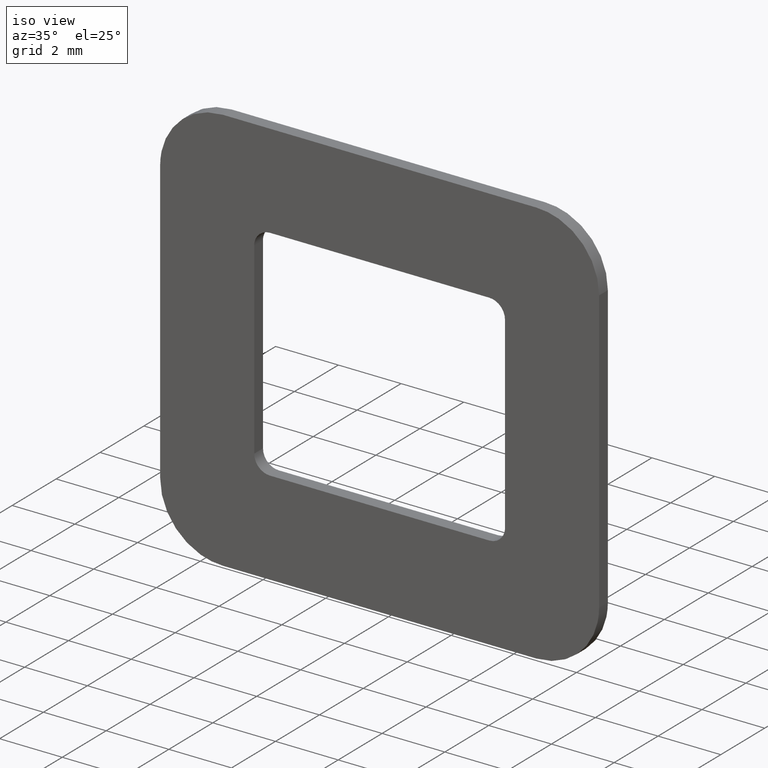
[diagram: clean part render]
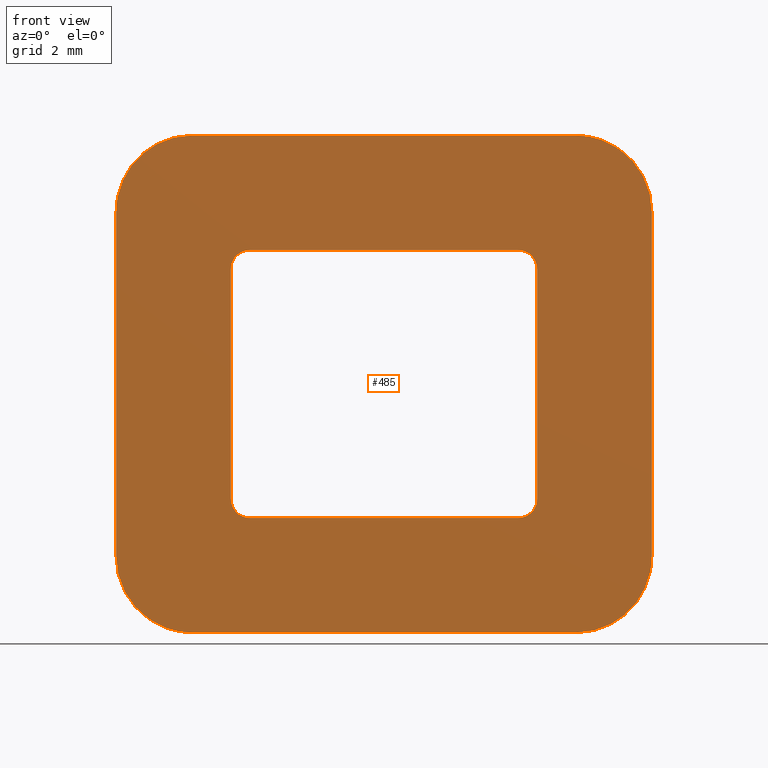
[diagram: tour spotlight — one face highlighted and labeled with its STEP entity id]
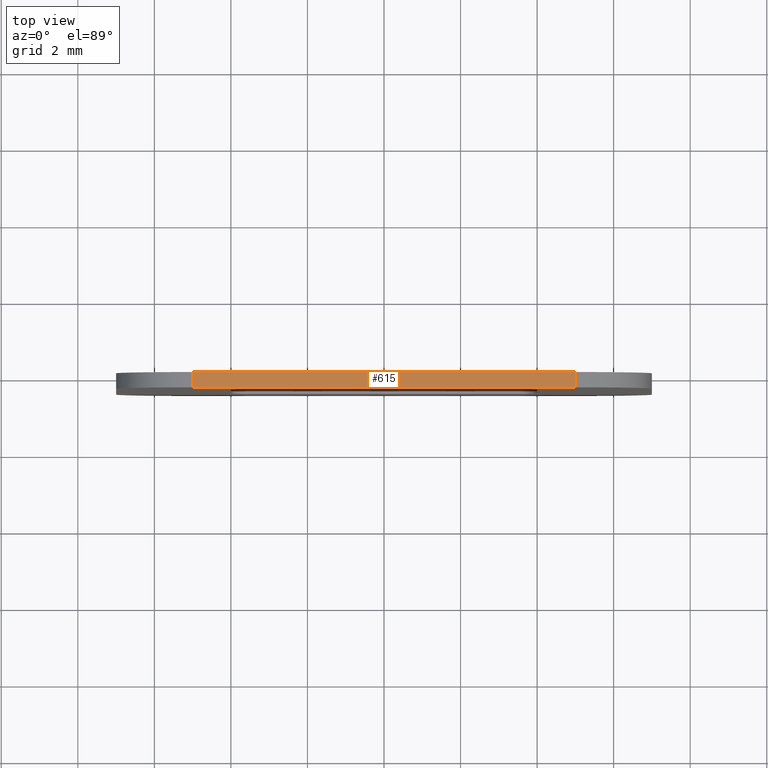
[diagram: tour spotlight — one face highlighted and labeled with its STEP entity id]
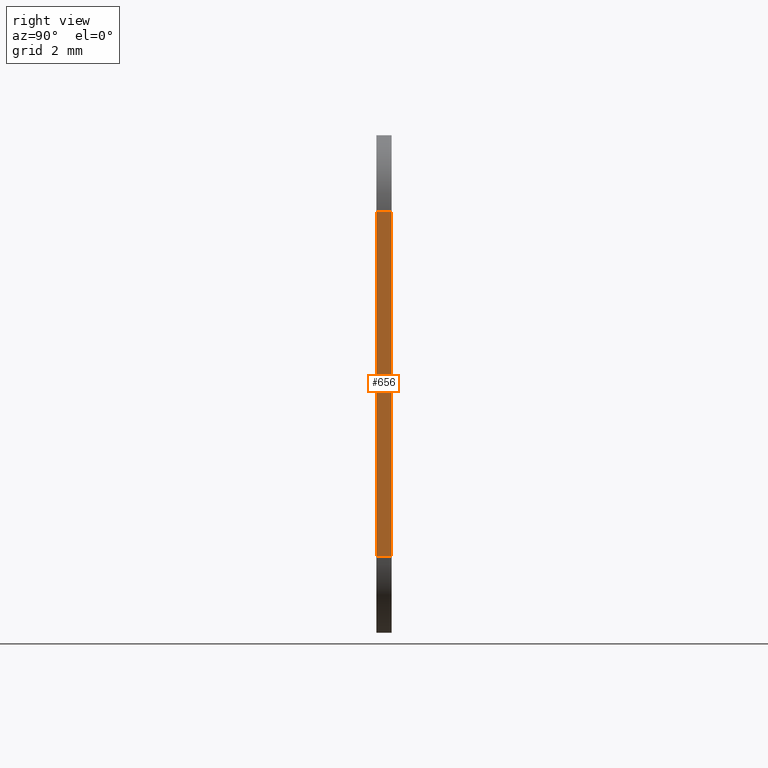
[diagram: tour spotlight — one face highlighted and labeled with its STEP entity id]
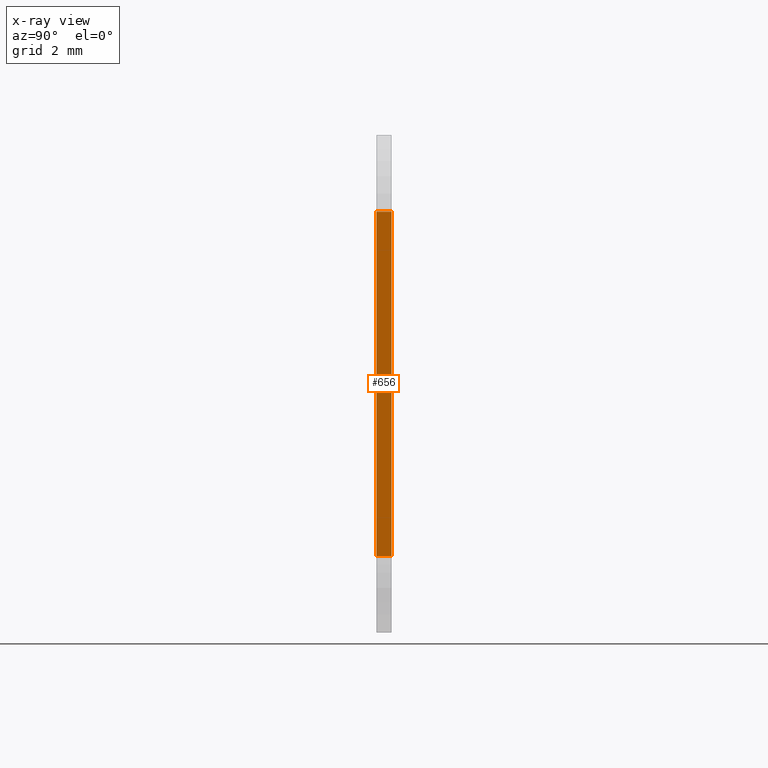
[diagram: x-ray of the same camera — body ghosted, this tour face saturated]
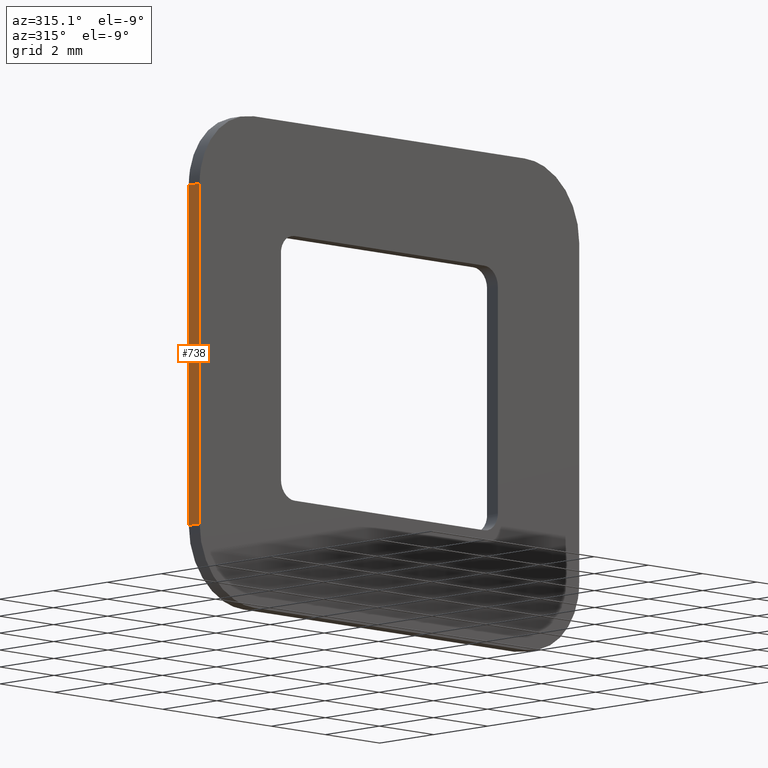
[diagram: tour spotlight — one face highlighted and labeled with its STEP entity id]
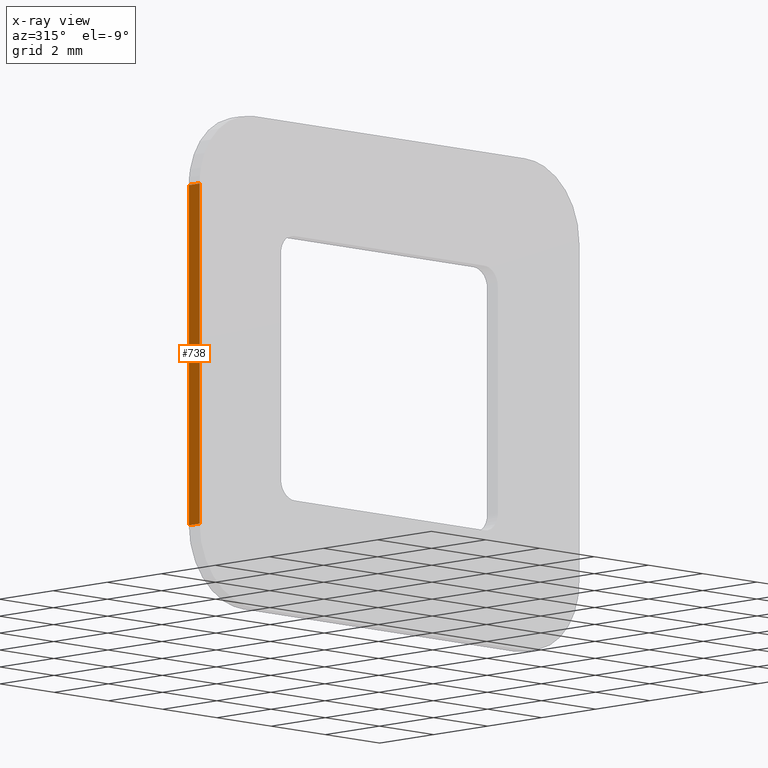
[diagram: x-ray of the same camera — body ghosted, this tour face saturated]
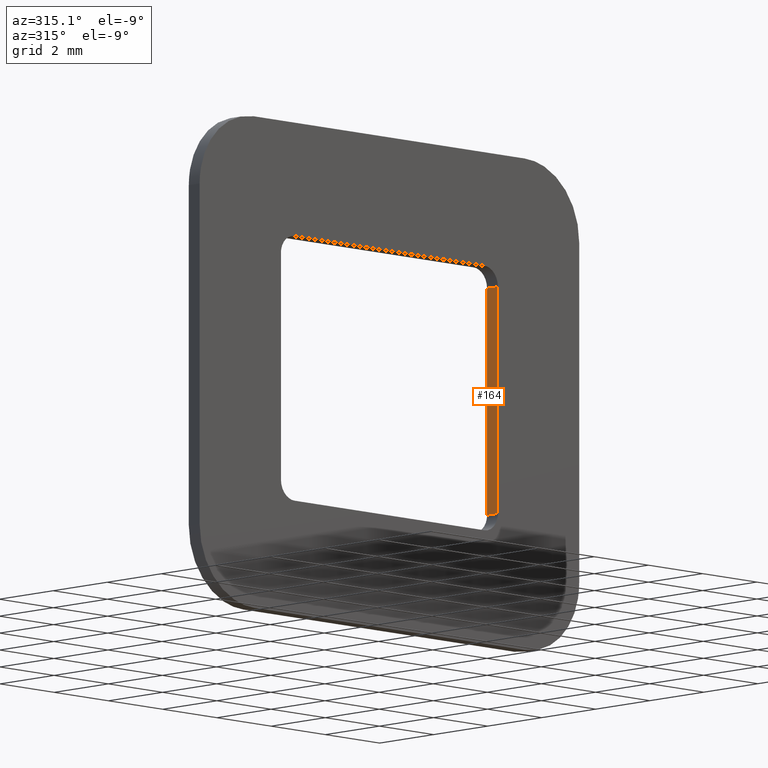
[diagram: tour spotlight — one face highlighted and labeled with its STEP entity id]
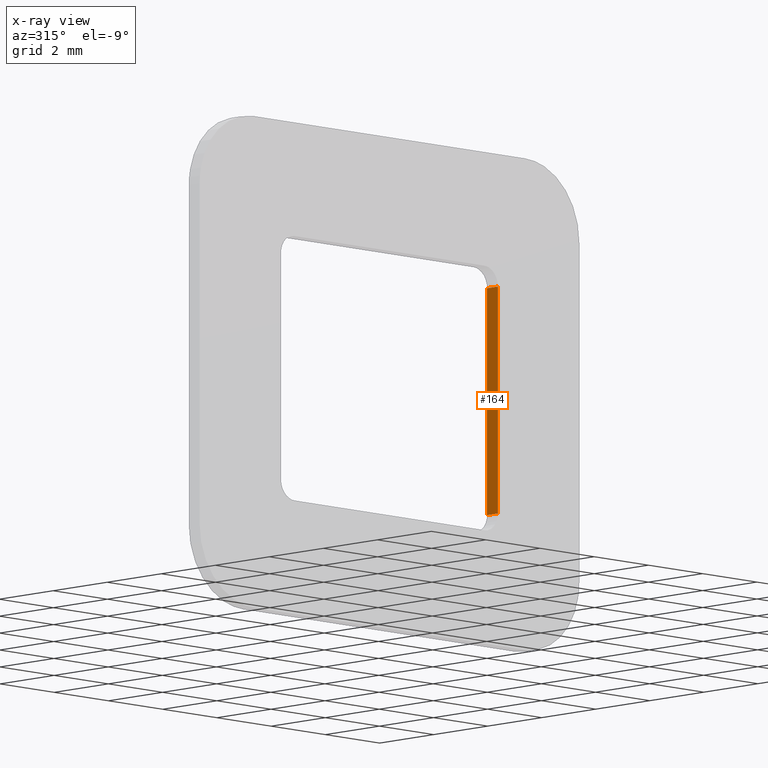
[diagram: x-ray of the same camera — body ghosted, this tour face saturated]
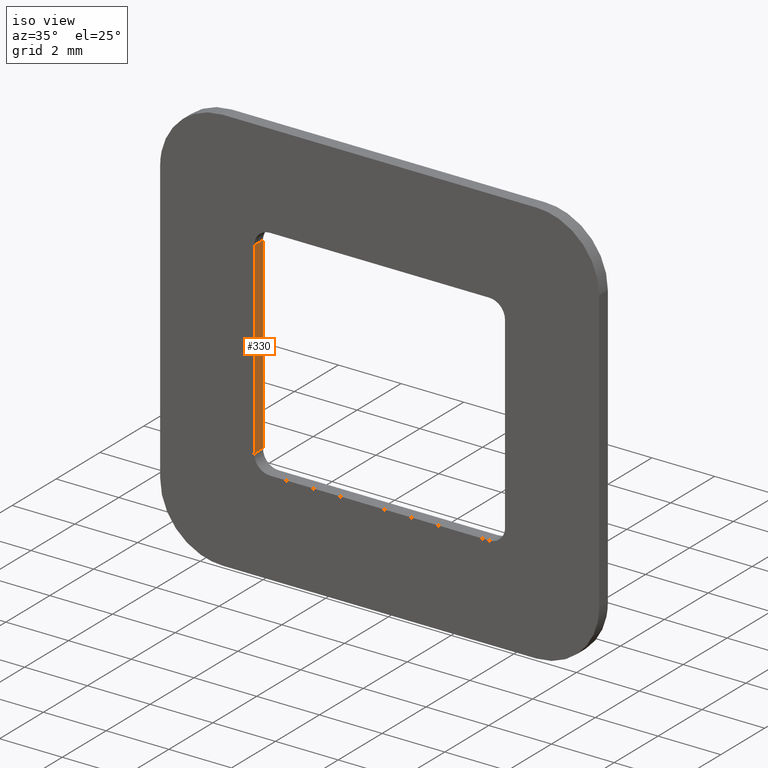
[diagram: tour spotlight — one face highlighted and labeled with its STEP entity id]
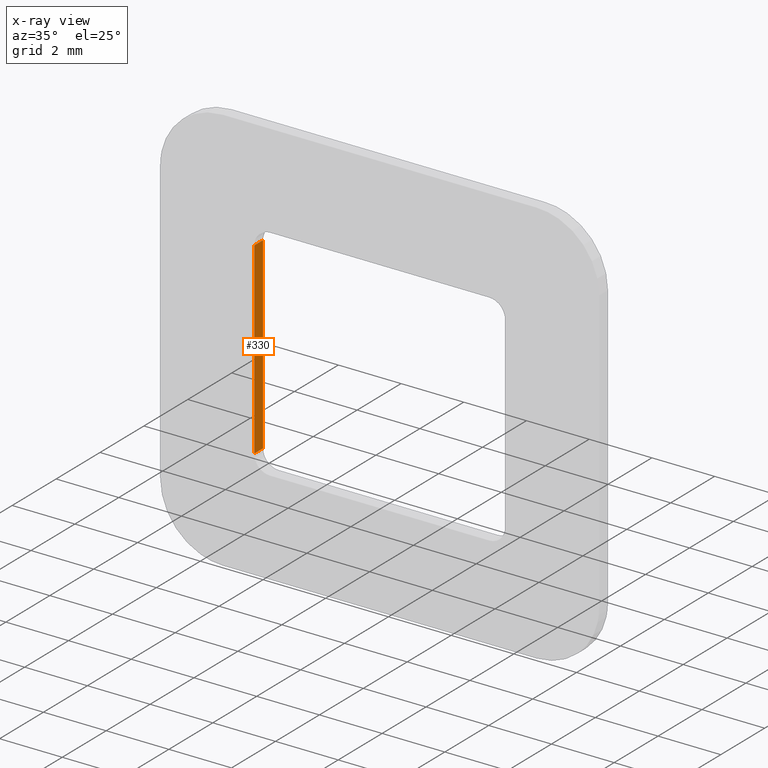
[diagram: x-ray of the same camera — body ghosted, this tour face saturated]
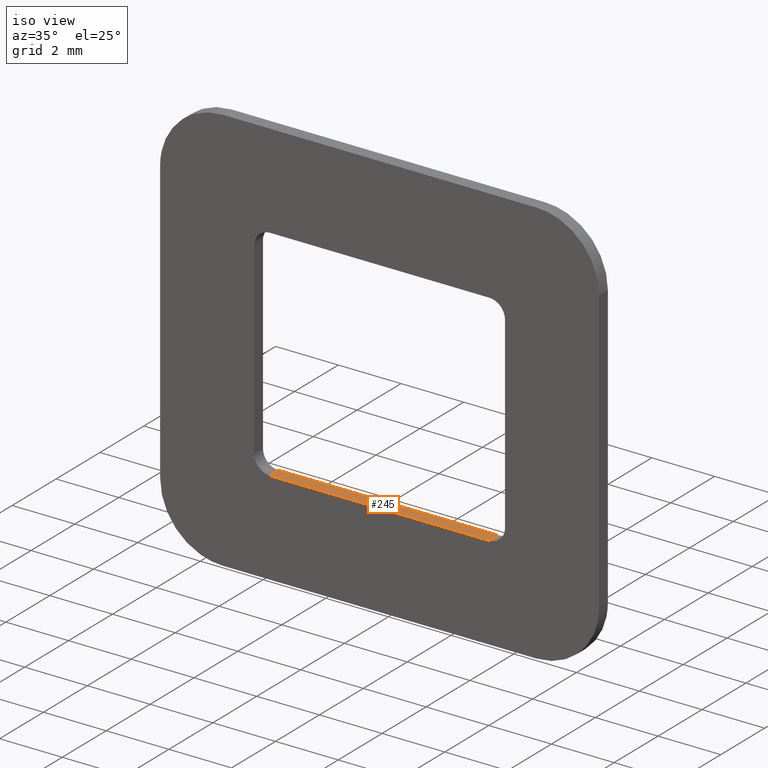
[diagram: tour spotlight — one face highlighted and labeled with its STEP entity id]
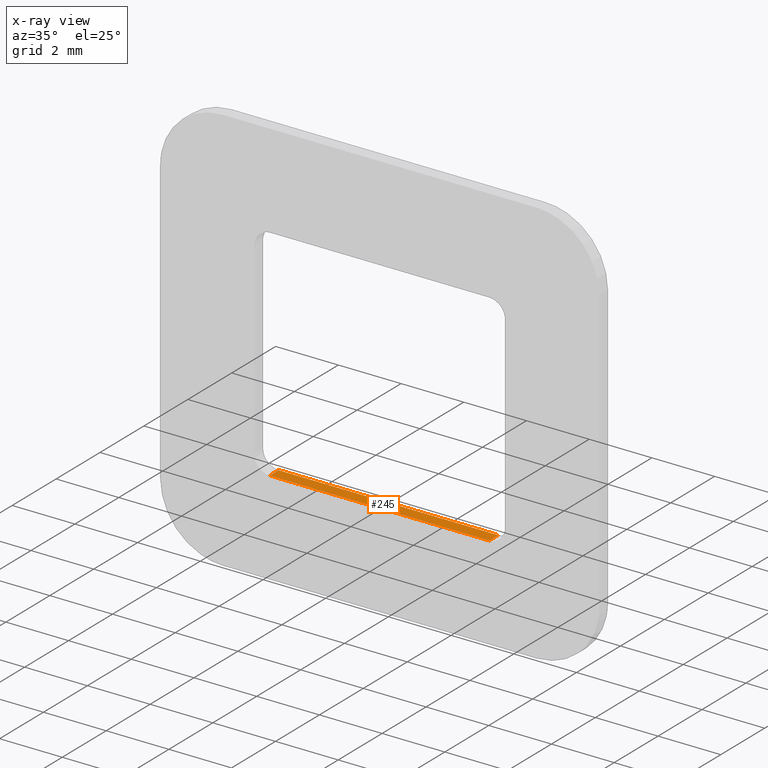
[diagram: x-ray of the same camera — body ghosted, this tour face saturated]
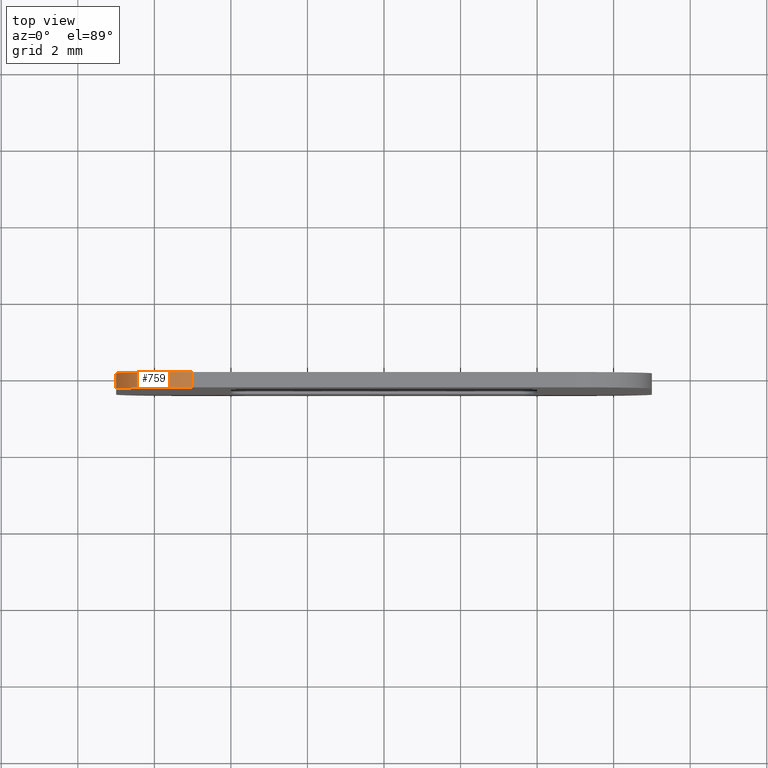
[diagram: tour spotlight — one face highlighted and labeled with its STEP entity id]
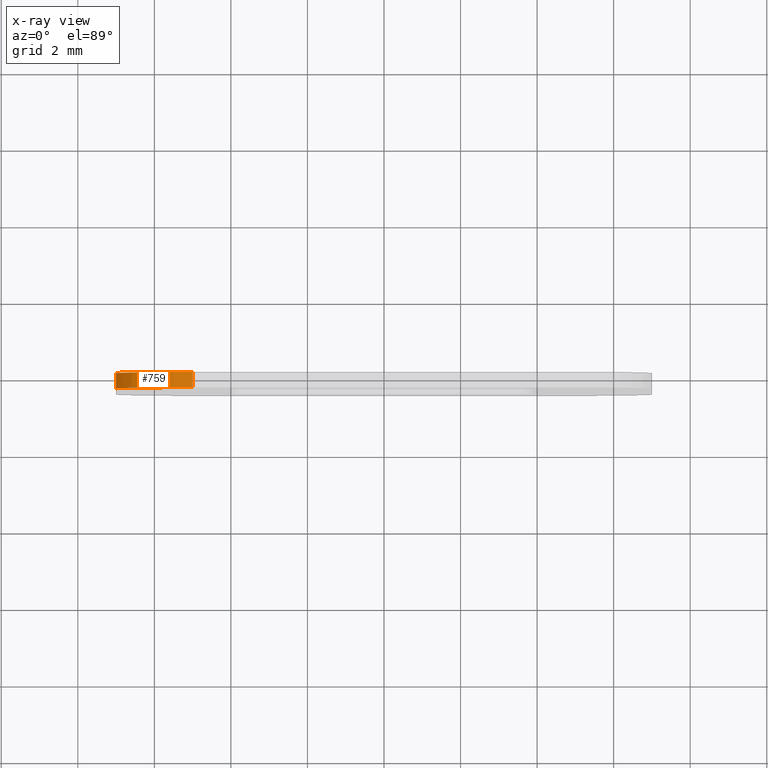
[diagram: x-ray of the same camera — body ghosted, this tour face saturated]
A machine part: a face-by-face anatomy tour. The part has 18 B-rep faces; the first image is the clean iso view, then the 8 largest visible faces are spotlighted one at a time (largest first), each with its STEP entity span.

Face 1 — front view, entity #485. In plain terms, the highlighted face is a freeform B-spline surface patch.
Definition (entity closure, byte-faithful):
#49=CARTESIAN_POINT('',(3.499999973820061,-0.400002000000000,3.500000000000000));
#50=VERTEX_POINT('',#49);
#51=CARTESIAN_POINT('',(-3.500000000000000,-0.400002000000011,3.500000000000000));
#52=VERTEX_POINT('',#51);
#53=CARTESIAN_POINT('',(3.499999973820061,-0.400002000000000,3.500000000000000));
#54=CARTESIAN_POINT('',(-3.500000000000000,-0.400002000000011,3.500000000000000));
#55=QUASI_UNIFORM_CURVE('',1,(#53,#54),.UNSPECIFIED.,.F.,.U.);
#56=EDGE_CURVE('',#50,#52,#55,.T.);
#94=CARTESIAN_POINT('',(4.0,-0.400002000000011,3.0));
#95=VERTEX_POINT('',#94);
#96=CARTESIAN_POINT('',(4.0,-0.400002000000011,3.0));
#97=CARTESIAN_POINT('',(4.0,-0.400002000000010,3.207106788854474));
#98=CARTESIAN_POINT('',(3.853553381337267,-0.400002000000011,3.353553399849280));
#99=CARTESIAN_POINT('',(3.707106762674535,-0.400002000000010,3.500000010844085));
#100=CARTESIAN_POINT('',(3.499999973820061,-0.400002000000000,3.500000000000000));
#108=(BOUNDED_CURVE()B_SPLINE_CURVE(2,(#96,#97,#98,#99,#100),.UNSPECIFIED.,.F.,.U.)B_SPLINE_CURVE_WITH_KNOTS((3,2,3),(0.0,0.500000000000000,1.0),.UNSPECIFIED.)CURVE()GEOMETRIC_REPRESENTATION_ITEM()RATIONAL_B_SPLINE_CURVE((1.0,0.923879527501972,1.0,0.923879527501972,1.0))REPRESENTATION_ITEM(''));
#109=EDGE_CURVE('',#95,#50,#108,.T.);
#142=CARTESIAN_POINT('',(4.0,-0.400002000000011,-3.0));
#143=VERTEX_POINT('',#142);
#144=CARTESIAN_POINT('',(4.0,-0.400002000000011,-3.0));
#145=CARTESIAN_POINT('',(4.0,-0.400002000000011,3.0));
#146=QUASI_UNIFORM_CURVE('',1,(#144,#145),.UNSPECIFIED.,.F.,.U.);
#147=EDGE_CURVE('',#143,#95,#146,.T.);
#179=CARTESIAN_POINT('',(3.500000000000000,-0.400002000000011,-3.500000000000000));
#180=VERTEX_POINT('',#179);
#181=CARTESIAN_POINT('',(3.500000000000000,-0.400002000000011,-3.500000000000000));
#182=CARTESIAN_POINT('',(4.000000000000000,-0.400002000000010,-3.499999999999999));
#183=CARTESIAN_POINT('',(4.0,-0.400002000000011,-3.0));
#191=(BOUNDED_CURVE()B_SPLINE_CURVE(2,(#181,#182,#183),.UNSPECIFIED.,.F.,.U.)CURVE()GEOMETRIC_REPRESENTATION_ITEM()QUASI_UNIFORM_CURVE()RATIONAL_B_SPLINE_CURVE((1.0,0.707106781186548,1.0))REPRESENTATION_ITEM(''));
#192=EDGE_CURVE('',#180,#143,#191,.T.);
#223=CARTESIAN_POINT('',(-3.499999991273355,-0.400002000000011,-3.500000000000000));
#224=VERTEX_POINT('',#223);
#225=CARTESIAN_POINT('',(-3.499999991273355,-0.400002000000011,-3.500000000000000));
#226=CARTESIAN_POINT('',(3.500000000000000,-0.400002000000011,-3.500000000000000));
#227=QUASI_UNIFORM_CURVE('',1,(#225,#226),.UNSPECIFIED.,.F.,.U.);
#228=EDGE_CURVE('',#224,#180,#227,.T.);
#260=CARTESIAN_POINT('',(-4.0,-0.400002000000011,-3.0));
#261=VERTEX_POINT('',#260);
#262=CARTESIAN_POINT('',(-4.0,-0.400002000000011,-3.0));
#263=CARTESIAN_POINT('',(-4.000000000000001,-0.400002000000010,-3.207106783742522));
#264=CARTESIAN_POINT('',(-3.853553387507939,-0.400002000000011,-3.353553393678608));
#265=CARTESIAN_POINT('',(-3.707106775015878,-0.400002000000010,-3.500000003614694));
#266=CARTESIAN_POINT('',(-3.499999991273355,-0.400002000000011,-3.500000000000000));
#274=(BOUNDED_CURVE()B_SPLINE_CURVE(2,(#262,#263,#264,#265,#266),.UNSPECIFIED.,.F.,.U.)B_SPLINE_CURVE_WITH_KNOTS((3,2,3),(0.0,0.500000000000000,1.0),.UNSPECIFIED.)CURVE()GEOMETRIC_REPRESENTATION_ITEM()RATIONAL_B_SPLINE_CURVE((1.0,0.923879530841516,1.0,0.923879530841516,1.0))REPRESENTATION_ITEM(''));
#275=EDGE_CURVE('',#261,#224,#274,.T.);
#308=CARTESIAN_POINT('',(-4.0,-0.400002000000011,3.0));
#309=VERTEX_POINT('',#308);
#310=CARTESIAN_POINT('',(-4.0,-0.400002000000011,3.0));
#311=CARTESIAN_POINT('',(-4.0,-0.400002000000011,-3.0));
#312=QUASI_UNIFORM_CURVE('',1,(#310,#311),.UNSPECIFIED.,.F.,.U.);
#313=EDGE_CURVE('',#309,#261,#312,.T.);
#345=CARTESIAN_POINT('',(-3.500000000000000,-0.400002000000011,3.500000000000000));
#346=CARTESIAN_POINT('',(-4.000000000000000,-0.400002000000010,3.499999999999999));
#347=CARTESIAN_POINT('',(-4.0,-0.400002000000011,3.0));
#355=(BOUNDED_CURVE()B_SPLINE_CURVE(2,(#345,#346,#347),.UNSPECIFIED.,.F.,.U.)CURVE()GEOMETRIC_REPRESENTATION_ITEM()QUASI_UNIFORM_CURVE()RATIONAL_B_SPLINE_CURVE((1.0,0.707106781186548,1.0))REPRESENTATION_ITEM(''));
#356=EDGE_CURVE('',#52,#309,#355,.T.);
#376=CARTESIAN_POINT('',(-7.699299972865286,-0.400002000000000,7.149349974803479));
#377=CARTESIAN_POINT('',(7.699300348374547,-0.400002000000000,7.149349974803479));
#378=CARTESIAN_POINT('',(-7.699299972865286,-0.400002000000000,-7.149350323490651));
#379=CARTESIAN_POINT('',(7.699300348374547,-0.400002000000000,-7.149350323490651));
#380=B_SPLINE_SURFACE_WITH_KNOTS('',1,1,((#376,#378),(#377,#379)),.UNSPECIFIED.,.F.,.F.,.U.,(2,2),(2,2),(0.0,15.398600321239829),(0.0,14.298700298294129),.UNSPECIFIED.);
#381=CARTESIAN_POINT('',(-5.0,-0.400002000000011,6.500000000000000));
#382=VERTEX_POINT('',#381);
#383=CARTESIAN_POINT('',(-7.0,-0.400002000000011,4.500000000000000));
#384=VERTEX_POINT('',#383);
#385=CARTESIAN_POINT('',(-5.0,-0.400002000000011,6.500000000000000));
#386=CARTESIAN_POINT('',(-6.999999999999999,-0.400002000000010,6.500000000000001));
#387=CARTESIAN_POINT('',(-7.0,-0.400002000000011,4.500000000000000));
#395=(BOUNDED_CURVE()B_SPLINE_CURVE(2,(#385,#386,#387),.UNSPECIFIED.,.F.,.U.)CURVE()GEOMETRIC_REPRESENTATION_ITEM()QUASI_UNIFORM_CURVE()RATIONAL_B_SPLINE_CURVE((1.0,0.707106781186548,1.0))REPRESENTATION_ITEM(''));
#396=EDGE_CURVE('',#382,#384,#395,.T.);
#397=ORIENTED_EDGE('',*,*,#396,.T.);
#398=CARTESIAN_POINT('',(-7.0,-0.400002000000011,-4.500000000000000));
#399=VERTEX_POINT('',#398);
#400=CARTESIAN_POINT('',(-7.0,-0.400002000000011,4.500000000000000));
#401=CARTESIAN_POINT('',(-7.0,-0.400002000000011,-4.500000000000000));
#402=QUASI_UNIFORM_CURVE('',1,(#400,#401),.UNSPECIFIED.,.F.,.U.);
#403=EDGE_CURVE('',#384,#399,#402,.T.);
#404=ORIENTED_EDGE('',*,*,#403,.T.);
#405=CARTESIAN_POINT('',(-4.999999965093420,-0.400002000000011,-6.500000000000000));
#406=VERTEX_POINT('',#405);
#407=CARTESIAN_POINT('',(-7.0,-0.400002000000011,-4.500000000000000));
#408=CARTESIAN_POINT('',(-6.999999999999999,-0.400002000000010,-5.328427134970091));
#409=CARTESIAN_POINT('',(-6.414213550031755,-0.400002000000011,-5.914213574714434));
#410=CARTESIAN_POINT('',(-5.828427100063511,-0.400002000000010,-6.500000014458778));
#411=CARTESIAN_POINT('',(-4.999999965093421,-0.400002000000011,-6.499999999999999));
#419=(BOUNDED_CURVE()B_SPLINE_CURVE(2,(#407,#408,#409,#410,#411),.UNSPECIFIED.,.F.,.U.)B_SPLINE_CURVE_WITH_KNOTS((3,2,3),(0.0,0.500000000000000,1.0),.UNSPECIFIED.)CURVE()GEOMETRIC_REPRESENTATION_ITEM()RATIONAL_B_SPLINE_CURVE((1.0,0.923879530841516,1.0,0.923879530841516,1.0))REPRESENTATION_ITEM(''));
#420=EDGE_CURVE('',#399,#406,#419,.T.);
#421=ORIENTED_EDGE('',*,*,#420,.T.);
#422=CARTESIAN_POINT('',(5.0,-0.400002000000011,-6.500000000000000));
#423=VERTEX_POINT('',#422);
#424=CARTESIAN_POINT('',(-4.999999965093420,-0.400002000000011,-6.500000000000000));
#425=CARTESIAN_POINT('',(5.0,-0.400002000000011,-6.500000000000000));
#426=QUASI_UNIFORM_CURVE('',1,(#424,#425),.UNSPECIFIED.,.F.,.U.);
#427=EDGE_CURVE('',#406,#423,#426,.T.);
#428=ORIENTED_EDGE('',*,*,#427,.T.);
#429=CARTESIAN_POINT('',(7.0,-0.400002000000011,-4.500000000000000));
#430=VERTEX_POINT('',#429);
#431=CARTESIAN_POINT('',(5.0,-0.400002000000011,-6.500000000000000));
#432=CARTESIAN_POINT('',(6.999999999999999,-0.400002000000010,-6.500000000000001));
#433=CARTESIAN_POINT('',(7.0,-0.400002000000011,-4.500000000000000));
#441=(BOUNDED_CURVE()B_SPLINE_CURVE(2,(#431,#432,#433),.UNSPECIFIED.,.F.,.U.)CURVE()GEOMETRIC_REPRESENTATION_ITEM()QUASI_UNIFORM_CURVE()RATIONAL_B_SPLINE_CURVE((1.0,0.707106781186548,1.0))REPRESENTATION_ITEM(''));
#442=EDGE_CURVE('',#423,#430,#441,.T.);
#443=ORIENTED_EDGE('',*,*,#442,.T.);
#444=CARTESIAN_POINT('',(7.0,-0.400002000000011,4.500000000000000));
#445=VERTEX_POINT('',#444);
#446=CARTESIAN_POINT('',(7.0,-0.400002000000011,-4.500000000000000));
#447=CARTESIAN_POINT('',(7.0,-0.400002000000011,4.500000000000000));
#448=QUASI_UNIFORM_CURVE('',1,(#446,#447),.UNSPECIFIED.,.F.,.U.);
#449=EDGE_CURVE('',#430,#445,#448,.T.);
#450=ORIENTED_EDGE('',*,*,#449,.T.);
#451=CARTESIAN_POINT('',(4.999999895280250,-0.400002000000011,6.500000000000000));
#452=VERTEX_POINT('',#451);
#453=CARTESIAN_POINT('',(7.0,-0.400002000000011,4.500000000000000));
#454=CARTESIAN_POINT('',(7.000000000000001,-0.400002000000011,5.328427155417894));
#455=CARTESIAN_POINT('',(6.414213525349073,-0.400002000000011,5.914213599397117));
#456=CARTESIAN_POINT('',(5.828427050698144,-0.400002000000011,6.500000043376339));
#457=CARTESIAN_POINT('',(4.999999895280250,-0.400002000000011,6.499999999999997));
#465=(BOUNDED_CURVE()B_SPLINE_CURVE(2,(#453,#454,#455,#456,#457),.UNSPECIFIED.,.F.,.U.)B_SPLINE_CURVE_WITH_KNOTS((3,2,3),(0.0,0.500000000000000,1.0),.UNSPECIFIED.)CURVE()GEOMETRIC_REPRESENTATION_ITEM()RATIONAL_B_SPLINE_CURVE((1.0,0.923879527501973,1.0,0.923879527501973,1.0))REPRESENTATION_ITEM(''));
#466=EDGE_CURVE('',#445,#452,#465,.T.);
#467=ORIENTED_EDGE('',*,*,#466,.T.);
#468=CARTESIAN_POINT('',(4.999999895280250,-0.400002000000011,6.500000000000000));
#469=CARTESIAN_POINT('',(-5.0,-0.400002000000011,6.500000000000000));
#470=QUASI_UNIFORM_CURVE('',1,(#468,#469),.UNSPECIFIED.,.F.,.U.);
#471=EDGE_CURVE('',#452,#382,#470,.T.);
#472=ORIENTED_EDGE('',*,*,#471,.T.);
#473=EDGE_LOOP('',(#397,#404,#421,#428,#443,#450,#467,#472));
#474=FACE_OUTER_BOUND('',#473,.T.);
#475=ORIENTED_EDGE('',*,*,#356,.F.);
#476=ORIENTED_EDGE('',*,*,#56,.F.);
#477=ORIENTED_EDGE('',*,*,#109,.F.);
#478=ORIENTED_EDGE('',*,*,#147,.F.);
#479=ORIENTED_EDGE('',*,*,#192,.F.);
#480=ORIENTED_EDGE('',*,*,#228,.F.);
#481=ORIENTED_EDGE('',*,*,#275,.F.);
#482=ORIENTED_EDGE('',*,*,#313,.F.);
#483=EDGE_LOOP('',(#475,#476,#477,#478,#479,#480,#481,#482));
#484=FACE_BOUND('',#483,.T.);
#485=ADVANCED_FACE('',(#474,#484),#380,.F.);

Face 2 — top view, entity #615. In plain terms, the highlighted face is a freeform B-spline surface patch.
Definition (entity closure, byte-faithful):
#381=CARTESIAN_POINT('',(-5.0,-0.400002000000011,6.500000000000000));
#382=VERTEX_POINT('',#381);
#451=CARTESIAN_POINT('',(4.999999895280250,-0.400002000000011,6.500000000000000));
#452=VERTEX_POINT('',#451);
#468=CARTESIAN_POINT('',(4.999999895280250,-0.400002000000011,6.500000000000000));
#469=CARTESIAN_POINT('',(-5.0,-0.400002000000011,6.500000000000000));
#470=QUASI_UNIFORM_CURVE('',1,(#468,#469),.UNSPECIFIED.,.F.,.U.);
#471=EDGE_CURVE('',#452,#382,#470,.T.);
#491=CARTESIAN_POINT('',(-5.0,0.0,6.500000000000000));
#492=VERTEX_POINT('',#491);
#508=CARTESIAN_POINT('',(4.999999895280250,0.0,6.500000000000000));
#509=VERTEX_POINT('',#508);
#510=CARTESIAN_POINT('',(4.999999895280250,0.0,6.500000000000000));
#511=CARTESIAN_POINT('',(-5.0,0.0,6.500000000000000));
#512=QUASI_UNIFORM_CURVE('',1,(#510,#511),.UNSPECIFIED.,.F.,.U.);
#513=EDGE_CURVE('',#509,#492,#512,.T.);
#596=CARTESIAN_POINT('',(-5.499499975387309,-0.419982102879662,6.500000000000000));
#597=CARTESIAN_POINT('',(5.499500138888458,-0.419982102879662,6.500000000000000));
#598=CARTESIAN_POINT('',(-5.499499975387309,0.019980110032245,6.500000000000000));
#599=CARTESIAN_POINT('',(5.499500138888458,0.019980110032245,6.500000000000000));
#600=B_SPLINE_SURFACE_WITH_KNOTS('',1,1,((#596,#598),(#597,#599)),.UNSPECIFIED.,.F.,.F.,.U.,(2,2),(2,2),(0.0,10.999000114275770),(0.0,0.439962212911907),.UNSPECIFIED.);
#601=ORIENTED_EDGE('',*,*,#471,.F.);
#602=CARTESIAN_POINT('',(4.999999895280250,0.0,6.500000000000000));
#603=CARTESIAN_POINT('',(4.999999895280250,-0.400002000000011,6.500000000000000));
#604=QUASI_UNIFORM_CURVE('',1,(#602,#603),.UNSPECIFIED.,.F.,.U.);
#605=EDGE_CURVE('',#509,#452,#604,.T.);
#606=ORIENTED_EDGE('',*,*,#605,.F.);
#607=ORIENTED_EDGE('',*,*,#513,.T.);
#608=CARTESIAN_POINT('',(-5.0,0.0,6.500000000000000));
#609=CARTESIAN_POINT('',(-5.0,-0.400002000000011,6.500000000000000));
#610=QUASI_UNIFORM_CURVE('',1,(#608,#609),.UNSPECIFIED.,.F.,.U.);
#611=EDGE_CURVE('',#492,#382,#610,.T.);
#612=ORIENTED_EDGE('',*,*,#611,.T.);
#613=EDGE_LOOP('',(#601,#606,#607,#612));
#614=FACE_OUTER_BOUND('',#613,.T.);
#615=ADVANCED_FACE('',(#614),#600,.T.);

Face 3 — right view, entity #656. An x-ray twin of the same camera follows (body ghosted, this face saturated) — the face is partly hidden behind the body. In plain terms, the highlighted face is a freeform B-spline surface patch.
Definition (entity closure, byte-faithful):
#429=CARTESIAN_POINT('',(7.0,-0.400002000000011,-4.500000000000000));
#430=VERTEX_POINT('',#429);
#444=CARTESIAN_POINT('',(7.0,-0.400002000000011,4.500000000000000));
#445=VERTEX_POINT('',#444);
#446=CARTESIAN_POINT('',(7.0,-0.400002000000011,-4.500000000000000));
#447=CARTESIAN_POINT('',(7.0,-0.400002000000011,4.500000000000000));
#448=QUASI_UNIFORM_CURVE('',1,(#446,#447),.UNSPECIFIED.,.F.,.U.);
#449=EDGE_CURVE('',#430,#445,#448,.T.);
#515=CARTESIAN_POINT('',(7.0,0.0,4.500000000000000));
#516=VERTEX_POINT('',#515);
#532=CARTESIAN_POINT('',(7.0,0.0,-4.500000000000000));
#533=VERTEX_POINT('',#532);
#534=CARTESIAN_POINT('',(7.0,0.0,-4.500000000000000));
#535=CARTESIAN_POINT('',(7.0,0.0,4.500000000000000));
#536=QUASI_UNIFORM_CURVE('',1,(#534,#535),.UNSPECIFIED.,.F.,.U.);
#537=EDGE_CURVE('',#533,#516,#536,.T.);
#631=CARTESIAN_POINT('',(7.0,0.0,4.500000000000000));
#632=CARTESIAN_POINT('',(7.0,-0.400002000000011,4.500000000000000));
#633=QUASI_UNIFORM_CURVE('',1,(#631,#632),.UNSPECIFIED.,.F.,.U.);
#634=EDGE_CURVE('',#516,#445,#633,.T.);
#641=CARTESIAN_POINT('',(7.0,-0.419982102879662,4.949549982556253));
#642=CARTESIAN_POINT('',(7.0,-0.419982102879662,-4.949550223955065));
#643=CARTESIAN_POINT('',(7.0,0.019980110032245,4.949549982556253));
#644=CARTESIAN_POINT('',(7.0,0.019980110032245,-4.949550223955065));
#645=B_SPLINE_SURFACE_WITH_KNOTS('',1,1,((#641,#643),(#642,#644)),.UNSPECIFIED.,.F.,.F.,.U.,(2,2),(2,2),(0.0,9.899100206511317),(0.0,0.439962212911907),.UNSPECIFIED.);
#646=ORIENTED_EDGE('',*,*,#449,.F.);
#647=CARTESIAN_POINT('',(7.0,0.0,-4.500000000000000));
#648=CARTESIAN_POINT('',(7.0,-0.400002000000011,-4.500000000000000));
#649=QUASI_UNIFORM_CURVE('',1,(#647,#648),.UNSPECIFIED.,.F.,.U.);
#650=EDGE_CURVE('',#533,#430,#649,.T.);
#651=ORIENTED_EDGE('',*,*,#650,.F.);
#652=ORIENTED_EDGE('',*,*,#537,.T.);
#653=ORIENTED_EDGE('',*,*,#634,.T.);
#654=EDGE_LOOP('',(#646,#651,#652,#653));
#655=FACE_OUTER_BOUND('',#654,.T.);
#656=ADVANCED_FACE('',(#655),#645,.T.);

Face 4 — auxiliary view, entity #738. An x-ray twin of the same camera follows (body ghosted, this face saturated) — the face is partly hidden behind the body. In plain terms, the highlighted face is a freeform B-spline surface patch.
Definition (entity closure, byte-faithful):
#383=CARTESIAN_POINT('',(-7.0,-0.400002000000011,4.500000000000000));
#384=VERTEX_POINT('',#383);
#398=CARTESIAN_POINT('',(-7.0,-0.400002000000011,-4.500000000000000));
#399=VERTEX_POINT('',#398);
#400=CARTESIAN_POINT('',(-7.0,-0.400002000000011,4.500000000000000));
#401=CARTESIAN_POINT('',(-7.0,-0.400002000000011,-4.500000000000000));
#402=QUASI_UNIFORM_CURVE('',1,(#400,#401),.UNSPECIFIED.,.F.,.U.);
#403=EDGE_CURVE('',#384,#399,#402,.T.);
#493=CARTESIAN_POINT('',(-7.0,0.0,4.500000000000000));
#494=VERTEX_POINT('',#493);
#561=CARTESIAN_POINT('',(-7.0,0.0,-4.500000000000000));
#562=VERTEX_POINT('',#561);
#578=CARTESIAN_POINT('',(-7.0,0.0,4.500000000000000));
#579=CARTESIAN_POINT('',(-7.0,0.0,-4.500000000000000));
#580=QUASI_UNIFORM_CURVE('',1,(#578,#579),.UNSPECIFIED.,.F.,.U.);
#581=EDGE_CURVE('',#494,#562,#580,.T.);
#713=CARTESIAN_POINT('',(-7.0,0.0,-4.500000000000000));
#714=CARTESIAN_POINT('',(-7.0,-0.400002000000011,-4.500000000000000));
#715=QUASI_UNIFORM_CURVE('',1,(#713,#714),.UNSPECIFIED.,.F.,.U.);
#716=EDGE_CURVE('',#562,#399,#715,.T.);
#723=CARTESIAN_POINT('',(-7.0,-0.419982102879662,-4.949549982556253));
#724=CARTESIAN_POINT('',(-7.0,-0.419982102879662,4.949550223955065));
#725=CARTESIAN_POINT('',(-7.0,0.019980110032245,-4.949549982556253));
#726=CARTESIAN_POINT('',(-7.0,0.019980110032245,4.949550223955065));
#727=B_SPLINE_SURFACE_WITH_KNOTS('',1,1,((#723,#725),(#724,#726)),.UNSPECIFIED.,.F.,.F.,.U.,(2,2),(2,2),(0.0,9.899100206511317),(0.0,0.439962212911907),.UNSPECIFIED.);
#728=ORIENTED_EDGE('',*,*,#403,.F.);
#729=CARTESIAN_POINT('',(-7.0,0.0,4.500000000000000));
#730=CARTESIAN_POINT('',(-7.0,-0.400002000000011,4.500000000000000));
#731=QUASI_UNIFORM_CURVE('',1,(#729,#730),.UNSPECIFIED.,.F.,.U.);
#732=EDGE_CURVE('',#494,#384,#731,.T.);
#733=ORIENTED_EDGE('',*,*,#732,.F.);
#734=ORIENTED_EDGE('',*,*,#581,.T.);
#735=ORIENTED_EDGE('',*,*,#716,.T.);
#736=EDGE_LOOP('',(#728,#733,#734,#735));
#737=FACE_OUTER_BOUND('',#736,.T.);
#738=ADVANCED_FACE('',(#737),#727,.T.);

Face 5 — auxiliary view, entity #164. An x-ray twin of the same camera follows (body ghosted, this face saturated) — the face is partly hidden behind the body. In plain terms, the highlighted face is a freeform B-spline surface patch.
Definition (entity closure, byte-faithful):
#94=CARTESIAN_POINT('',(4.0,-0.400002000000011,3.0));
#95=VERTEX_POINT('',#94);
#112=CARTESIAN_POINT('',(4.0,0.0,3.0));
#113=VERTEX_POINT('',#112);
#129=CARTESIAN_POINT('',(4.0,0.0,3.0));
#130=CARTESIAN_POINT('',(4.0,-0.400002000000011,3.0));
#131=QUASI_UNIFORM_CURVE('',1,(#129,#130),.UNSPECIFIED.,.F.,.U.);
#132=EDGE_CURVE('',#113,#95,#131,.T.);
#137=CARTESIAN_POINT('',(4.0,-0.419982102879662,3.299699988370836));
#138=CARTESIAN_POINT('',(4.0,-0.419982102879662,-3.299700149303377));
#139=CARTESIAN_POINT('',(4.0,0.019980110032245,3.299699988370836));
#140=CARTESIAN_POINT('',(4.0,0.019980110032245,-3.299700149303377));
#141=B_SPLINE_SURFACE_WITH_KNOTS('',1,1,((#137,#139),(#138,#140)),.UNSPECIFIED.,.F.,.F.,.U.,(2,2),(2,2),(0.0,6.599400137674213),(0.0,0.439962212911907),.UNSPECIFIED.);
#142=CARTESIAN_POINT('',(4.0,-0.400002000000011,-3.0));
#143=VERTEX_POINT('',#142);
#144=CARTESIAN_POINT('',(4.0,-0.400002000000011,-3.0));
#145=CARTESIAN_POINT('',(4.0,-0.400002000000011,3.0));
#146=QUASI_UNIFORM_CURVE('',1,(#144,#145),.UNSPECIFIED.,.F.,.U.);
#147=EDGE_CURVE('',#143,#95,#146,.T.);
#148=ORIENTED_EDGE('',*,*,#147,.T.);
#149=ORIENTED_EDGE('',*,*,#132,.F.);
#150=CARTESIAN_POINT('',(4.0,0.0,-3.0));
#151=VERTEX_POINT('',#150);
#152=CARTESIAN_POINT('',(4.0,0.0,-3.0));
#153=CARTESIAN_POINT('',(4.0,0.0,3.0));
#154=QUASI_UNIFORM_CURVE('',1,(#152,#153),.UNSPECIFIED.,.F.,.U.);
#155=EDGE_CURVE('',#151,#113,#154,.T.);
#156=ORIENTED_EDGE('',*,*,#155,.F.);
#157=CARTESIAN_POINT('',(4.0,0.0,-3.0));
#158=CARTESIAN_POINT('',(4.0,-0.400002000000011,-3.0));
#159=QUASI_UNIFORM_CURVE('',1,(#157,#158),.UNSPECIFIED.,.F.,.U.);
#160=EDGE_CURVE('',#151,#143,#159,.T.);
#161=ORIENTED_EDGE('',*,*,#160,.T.);
#162=EDGE_LOOP('',(#148,#149,#156,#161));
#163=FACE_OUTER_BOUND('',#162,.T.);
#164=ADVANCED_FACE('',(#163),#141,.F.);

Face 6 — iso view, entity #330. An x-ray twin of the same camera follows (body ghosted, this face saturated) — the face is partly hidden behind the body. In plain terms, the highlighted face is a freeform B-spline surface patch.
Definition (entity closure, byte-faithful):
#260=CARTESIAN_POINT('',(-4.0,-0.400002000000011,-3.0));
#261=VERTEX_POINT('',#260);
#278=CARTESIAN_POINT('',(-4.0,0.0,-3.0));
#279=VERTEX_POINT('',#278);
#295=CARTESIAN_POINT('',(-4.0,0.0,-3.0));
#296=CARTESIAN_POINT('',(-4.0,-0.400002000000011,-3.0));
#297=QUASI_UNIFORM_CURVE('',1,(#295,#296),.UNSPECIFIED.,.F.,.U.);
#298=EDGE_CURVE('',#279,#261,#297,.T.);
#303=CARTESIAN_POINT('',(-4.0,-0.419982102879662,-3.299699988370836));
#304=CARTESIAN_POINT('',(-4.0,-0.419982102879662,3.299700149303377));
#305=CARTESIAN_POINT('',(-4.0,0.019980110032245,-3.299699988370836));
#306=CARTESIAN_POINT('',(-4.0,0.019980110032245,3.299700149303377));
#307=B_SPLINE_SURFACE_WITH_KNOTS('',1,1,((#303,#305),(#304,#306)),.UNSPECIFIED.,.F.,.F.,.U.,(2,2),(2,2),(0.0,6.599400137674213),(0.0,0.439962212911907),.UNSPECIFIED.);
#308=CARTESIAN_POINT('',(-4.0,-0.400002000000011,3.0));
#309=VERTEX_POINT('',#308);
#310=CARTESIAN_POINT('',(-4.0,-0.400002000000011,3.0));
#311=CARTESIAN_POINT('',(-4.0,-0.400002000000011,-3.0));
#312=QUASI_UNIFORM_CURVE('',1,(#310,#311),.UNSPECIFIED.,.F.,.U.);
#313=EDGE_CURVE('',#309,#261,#312,.T.);
#314=ORIENTED_EDGE('',*,*,#313,.T.);
#315=ORIENTED_EDGE('',*,*,#298,.F.);
#316=CARTESIAN_POINT('',(-4.0,0.0,3.0));
#317=VERTEX_POINT('',#316);
#318=CARTESIAN_POINT('',(-4.0,0.0,3.0));
#319=CARTESIAN_POINT('',(-4.0,0.0,-3.0));
#320=QUASI_UNIFORM_CURVE('',1,(#318,#319),.UNSPECIFIED.,.F.,.U.);
#321=EDGE_CURVE('',#317,#279,#320,.T.);
#322=ORIENTED_EDGE('',*,*,#321,.F.);
#323=CARTESIAN_POINT('',(-4.0,0.0,3.0));
#324=CARTESIAN_POINT('',(-4.0,-0.400002000000011,3.0));
#325=QUASI_UNIFORM_CURVE('',1,(#323,#324),.UNSPECIFIED.,.F.,.U.);
#326=EDGE_CURVE('',#317,#309,#325,.T.);
#327=ORIENTED_EDGE('',*,*,#326,.T.);
#328=EDGE_LOOP('',(#314,#315,#322,#327));
#329=FACE_OUTER_BOUND('',#328,.T.);
#330=ADVANCED_FACE('',(#329),#307,.F.);

Face 7 — iso view, entity #245. An x-ray twin of the same camera follows (body ghosted, this face saturated) — the face is partly hidden behind the body. In plain terms, the highlighted face is a freeform B-spline surface patch.
Definition (entity closure, byte-faithful):
#179=CARTESIAN_POINT('',(3.500000000000000,-0.400002000000011,-3.500000000000000));
#180=VERTEX_POINT('',#179);
#195=CARTESIAN_POINT('',(3.500000000000000,0.0,-3.500000000000000));
#196=VERTEX_POINT('',#195);
#210=CARTESIAN_POINT('',(3.500000000000000,0.0,-3.500000000000000));
#211=CARTESIAN_POINT('',(3.500000000000000,-0.400002000000011,-3.500000000000000));
#212=QUASI_UNIFORM_CURVE('',1,(#210,#211),.UNSPECIFIED.,.F.,.U.);
#213=EDGE_CURVE('',#196,#180,#212,.T.);
#218=CARTESIAN_POINT('',(3.849649985996746,-0.419982102879662,-3.500000000000000));
#219=CARTESIAN_POINT('',(-3.849650165024733,-0.419982102879662,-3.500000000000000));
#220=CARTESIAN_POINT('',(3.849649985996746,0.019980110032245,-3.500000000000000));
#221=CARTESIAN_POINT('',(-3.849650165024733,0.019980110032245,-3.500000000000000));
#222=B_SPLINE_SURFACE_WITH_KNOTS('',1,1,((#218,#220),(#219,#221)),.UNSPECIFIED.,.F.,.F.,.U.,(2,2),(2,2),(0.0,7.699300151021479),(0.0,0.439962212911907),.UNSPECIFIED.);
#223=CARTESIAN_POINT('',(-3.499999991273355,-0.400002000000011,-3.500000000000000));
#224=VERTEX_POINT('',#223);
#225=CARTESIAN_POINT('',(-3.499999991273355,-0.400002000000011,-3.500000000000000));
#226=CARTESIAN_POINT('',(3.500000000000000,-0.400002000000011,-3.500000000000000));
#227=QUASI_UNIFORM_CURVE('',1,(#225,#226),.UNSPECIFIED.,.F.,.U.);
#228=EDGE_CURVE('',#224,#180,#227,.T.);
#229=ORIENTED_EDGE('',*,*,#228,.T.);
#230=ORIENTED_EDGE('',*,*,#213,.F.);
#231=CARTESIAN_POINT('',(-3.499999991273355,0.0,-3.500000000000000));
#232=VERTEX_POINT('',#231);
#233=CARTESIAN_POINT('',(-3.499999991273355,0.0,-3.500000000000000));
#234=CARTESIAN_POINT('',(3.500000000000000,0.0,-3.500000000000000));
#235=QUASI_UNIFORM_CURVE('',1,(#233,#234),.UNSPECIFIED.,.F.,.U.);
#236=EDGE_CURVE('',#232,#196,#235,.T.);
#237=ORIENTED_EDGE('',*,*,#236,.F.);
#238=CARTESIAN_POINT('',(-3.499999991273355,0.0,-3.500000000000000));
#239=CARTESIAN_POINT('',(-3.499999991273355,-0.400002000000011,-3.500000000000000));
#240=QUASI_UNIFORM_CURVE('',1,(#238,#239),.UNSPECIFIED.,.F.,.U.);
#241=EDGE_CURVE('',#232,#224,#240,.T.);
#242=ORIENTED_EDGE('',*,*,#241,.T.);
#243=EDGE_LOOP('',(#229,#230,#237,#242));
#244=FACE_OUTER_BOUND('',#243,.T.);
#245=ADVANCED_FACE('',(#244),#222,.F.);

Face 8 — top view, entity #759. An x-ray twin of the same camera follows (body ghosted, this face saturated) — the face is partly hidden behind the body. In plain terms, the highlighted face is a freeform B-spline surface patch.
Definition (entity closure, byte-faithful):
#381=CARTESIAN_POINT('',(-5.0,-0.400002000000011,6.500000000000000));
#382=VERTEX_POINT('',#381);
#383=CARTESIAN_POINT('',(-7.0,-0.400002000000011,4.500000000000000));
#384=VERTEX_POINT('',#383);
#385=CARTESIAN_POINT('',(-5.0,-0.400002000000011,6.500000000000000));
#386=CARTESIAN_POINT('',(-6.999999999999999,-0.400002000000010,6.500000000000001));
#387=CARTESIAN_POINT('',(-7.0,-0.400002000000011,4.500000000000000));
#395=(BOUNDED_CURVE()B_SPLINE_CURVE(2,(#385,#386,#387),.UNSPECIFIED.,.F.,.U.)CURVE()GEOMETRIC_REPRESENTATION_ITEM()QUASI_UNIFORM_CURVE()RATIONAL_B_SPLINE_CURVE((1.0,0.707106781186548,1.0))REPRESENTATION_ITEM(''));
#396=EDGE_CURVE('',#382,#384,#395,.T.);
#491=CARTESIAN_POINT('',(-5.0,0.0,6.500000000000000));
#492=VERTEX_POINT('',#491);
#493=CARTESIAN_POINT('',(-7.0,0.0,4.500000000000000));
#494=VERTEX_POINT('',#493);
#495=CARTESIAN_POINT('',(-5.0,0.0,6.500000000000000));
#496=CARTESIAN_POINT('',(-6.999999999999999,0.0,6.500000000000001));
#497=CARTESIAN_POINT('',(-7.0,0.0,4.500000000000000));
#505=(BOUNDED_CURVE()B_SPLINE_CURVE(2,(#495,#496,#497),.UNSPECIFIED.,.F.,.U.)CURVE()GEOMETRIC_REPRESENTATION_ITEM()QUASI_UNIFORM_CURVE()RATIONAL_B_SPLINE_CURVE((1.0,0.707106781186548,1.0))REPRESENTATION_ITEM(''));
#506=EDGE_CURVE('',#492,#494,#505,.T.);
#608=CARTESIAN_POINT('',(-5.0,0.0,6.500000000000000));
#609=CARTESIAN_POINT('',(-5.0,-0.400002000000011,6.500000000000000));
#610=QUASI_UNIFORM_CURVE('',1,(#608,#609),.UNSPECIFIED.,.F.,.U.);
#611=EDGE_CURVE('',#492,#382,#610,.T.);
#729=CARTESIAN_POINT('',(-7.0,0.0,4.500000000000000));
#730=CARTESIAN_POINT('',(-7.0,-0.400002000000011,4.500000000000000));
#731=QUASI_UNIFORM_CURVE('',1,(#729,#730),.UNSPECIFIED.,.F.,.U.);
#732=EDGE_CURVE('',#494,#384,#731,.T.);
#739=CARTESIAN_POINT('',(-6.998096443163715,0.010000050000000,4.412761225269327));
#740=CARTESIAN_POINT('',(-6.998096443163715,-0.410252051250011,4.412761225269327));
#741=CARTESIAN_POINT('',(-7.095868981871970,0.010000050000000,6.652120528918071));
#742=CARTESIAN_POINT('',(-7.095868981871970,-0.410252051250011,6.652120528918071));
#743=CARTESIAN_POINT('',(-4.859883815912956,0.010000050000000,6.495085826463834));
#744=CARTESIAN_POINT('',(-4.859883815912956,-0.410252051250011,6.495085826463834));
#752=(BOUNDED_SURFACE()B_SPLINE_SURFACE(1,2,((#739,#741,#743),(#740,#742,#744)),.UNSPECIFIED.,.F.,.F.,.U.)B_SPLINE_SURFACE_WITH_KNOTS((2,2),(3,3),(0.0,0.420252101250011),(0.0,3.583485079683967),.UNSPECIFIED.)GEOMETRIC_REPRESENTATION_ITEM()RATIONAL_B_SPLINE_SURFACE(((1.0,0.664513898535122,0.996233561259061),(1.0,0.664513898535122,0.996233561259061)))REPRESENTATION_ITEM('')SURFACE());
#753=ORIENTED_EDGE('',*,*,#396,.F.);
#754=ORIENTED_EDGE('',*,*,#611,.F.);
#755=ORIENTED_EDGE('',*,*,#506,.T.);
#756=ORIENTED_EDGE('',*,*,#732,.T.);
#757=EDGE_LOOP('',(#753,#754,#755,#756));
#758=FACE_OUTER_BOUND('',#757,.T.);
#759=ADVANCED_FACE('',(#758),#752,.T.);